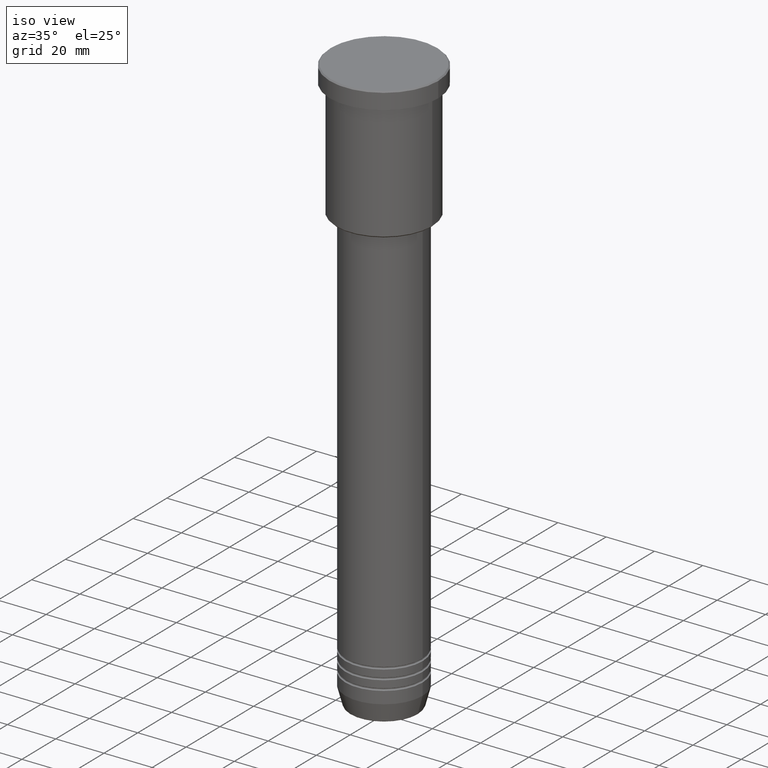
[diagram: clean part render]
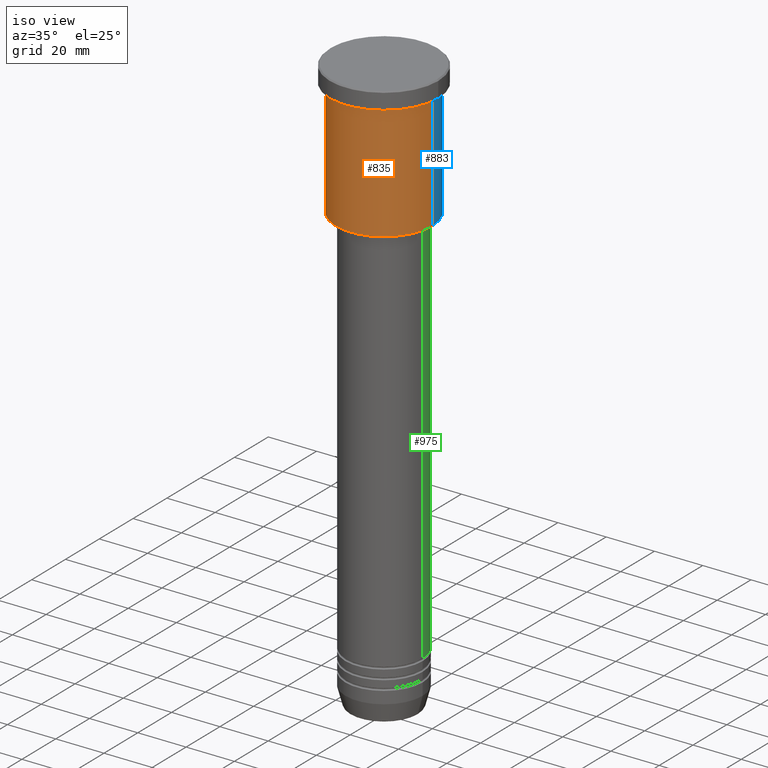
[diagram: same view with three faces highlighted in distinct colors, each labeled with its STEP entity id]
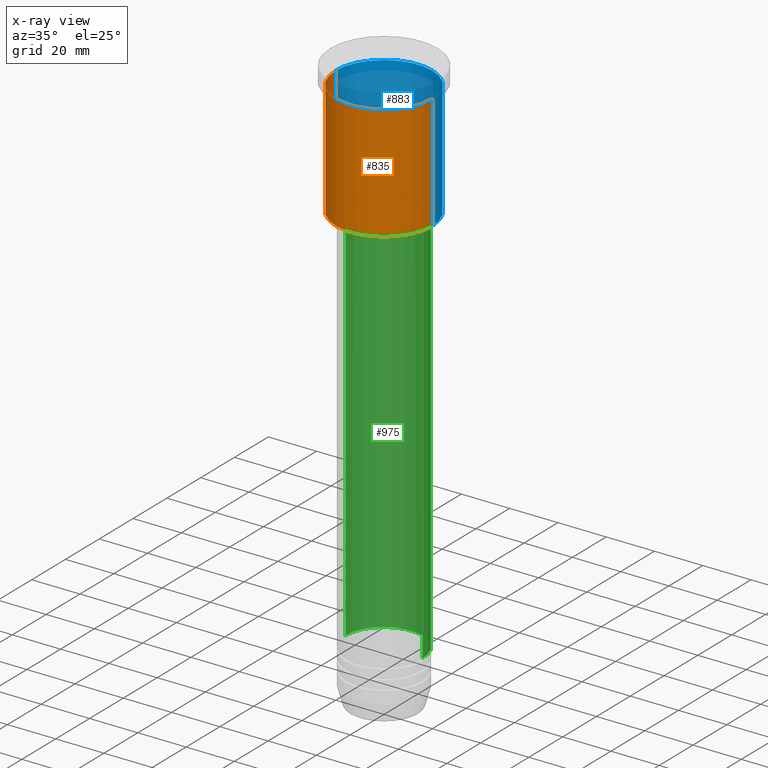
[diagram: x-ray of the same camera — body ghosted, the three highlighted faces saturated]
A machine part, iso view with three faces highlighted in distinct colors.
The next image is the same camera in x-ray (body ghosted, the three faces saturated) — at least one of them is partly hidden behind the body in this view.
Their STEP definitions:

[orange] entity #835 — the highlighted cylindrical surface (partial cylindrical patch) has radius 20 mm, axis along (-0, -0, 1).
#1 = CARTESIAN_POINT ( 'NONE',  ( 0.000000000000000000, 0.000000000000000000, -7.999999999999994671 ) ) ;
#76 = VECTOR ( 'NONE', #227, 1000.000000000000000 ) ;
#132 = DIRECTION ( 'NONE',  ( -1.000000000000000000, 0.000000000000000000, 0.000000000000000000 ) ) ;
#142 = CARTESIAN_POINT ( 'NONE',  ( -20.00000000000000000, 2.449293598294706513E-15, -7.999999999999994671 ) ) ;
#219 = ORIENTED_EDGE ( 'NONE', *, *, #287, .F. ) ;
#224 = EDGE_CURVE ( 'NONE', #571, #945, #1157, .T. ) ;
#227 = DIRECTION ( 'NONE',  ( -0.000000000000000000, -0.000000000000000000, 1.000000000000000000 ) ) ;
#287 = EDGE_CURVE ( 'NONE', #782, #945, #736, .T. ) ;
#292 = CARTESIAN_POINT ( 'NONE',  ( 20.00000000000000355, 0.000000000000000000, -55.50000000000000000 ) ) ;
#323 = CYLINDRICAL_SURFACE ( 'NONE', #566, 20.00000000000000355 ) ;
#335 = DIRECTION ( 'NONE',  ( 1.000000000000000000, 0.000000000000000000, 0.000000000000000000 ) ) ;
#430 = CIRCLE ( 'NONE', #523, 20.00000000000000355 ) ;
#439 = ORIENTED_EDGE ( 'NONE', *, *, #1092, .F. ) ;
#444 = CARTESIAN_POINT ( 'NONE',  ( 20.00000000000000000, 0.000000000000000000, -7.999999999999994671 ) ) ;
#449 = AXIS2_PLACEMENT_3D ( 'NONE', #1, #551, #335 ) ;
#452 = VERTEX_POINT ( 'NONE', #758 ) ;
#475 = VECTOR ( 'NONE', #1008, 1000.000000000000000 ) ;
#498 = CARTESIAN_POINT ( 'NONE',  ( 0.000000000000000000, 0.000000000000000000, 0.000000000000000000 ) ) ;
#523 = AXIS2_PLACEMENT_3D ( 'NONE', #943, #687, #132 ) ;
#551 = DIRECTION ( 'NONE',  ( -0.000000000000000000, -0.000000000000000000, 1.000000000000000000 ) ) ;
#566 = AXIS2_PLACEMENT_3D ( 'NONE', #498, #794, #1162 ) ;
#571 = VERTEX_POINT ( 'NONE', #292 ) ;
#677 = ORIENTED_EDGE ( 'NONE', *, *, #224, .T. ) ;
#687 = DIRECTION ( 'NONE',  ( -0.000000000000000000, -0.000000000000000000, 1.000000000000000000 ) ) ;
#736 = CIRCLE ( 'NONE', #449, 20.00000000000000000 ) ;
#738 = EDGE_CURVE ( 'NONE', #452, #571, #430, .T. ) ;
#750 = CARTESIAN_POINT ( 'NONE',  ( -20.00000000000000355, 2.449293598294706907E-15, 0.000000000000000000 ) ) ;
#758 = CARTESIAN_POINT ( 'NONE',  ( -20.00000000000000355, 2.449293598294706907E-15, -55.50000000000000000 ) ) ;
#760 = LINE ( 'NONE', #750, #475 ) ;
#782 = VERTEX_POINT ( 'NONE', #142 ) ;
#794 = DIRECTION ( 'NONE',  ( -0.000000000000000000, -0.000000000000000000, 1.000000000000000000 ) ) ;
#800 = ORIENTED_EDGE ( 'NONE', *, *, #738, .T. ) ;
#817 = EDGE_LOOP ( 'NONE', ( #439, #800, #677, #219 ) ) ;
#835 = ADVANCED_FACE ( 'NONE', ( #1153 ), #323, .T. ) ;
#943 = CARTESIAN_POINT ( 'NONE',  ( 0.000000000000000000, 0.000000000000000000, -55.50000000000000000 ) ) ;
#945 = VERTEX_POINT ( 'NONE', #444 ) ;
#1008 = DIRECTION ( 'NONE',  ( -0.000000000000000000, -0.000000000000000000, 1.000000000000000000 ) ) ;
#1092 = EDGE_CURVE ( 'NONE', #452, #782, #760, .T. ) ;
#1141 = CARTESIAN_POINT ( 'NONE',  ( 20.00000000000000355, 0.000000000000000000, 0.000000000000000000 ) ) ;
#1153 = FACE_OUTER_BOUND ( 'NONE', #817, .T. ) ;
#1157 = LINE ( 'NONE', #1141, #76 ) ;
#1162 = DIRECTION ( 'NONE',  ( 1.000000000000000000, 0.000000000000000000, 0.000000000000000000 ) ) ;

[blue] entity #883 — the highlighted cylindrical surface (partial cylindrical patch) has radius 20 mm, axis along (-0, -0, 1).
#60 = AXIS2_PLACEMENT_3D ( 'NONE', #1167, #942, #1108 ) ;
#76 = VECTOR ( 'NONE', #227, 1000.000000000000000 ) ;
#80 = EDGE_CURVE ( 'NONE', #945, #782, #579, .T. ) ;
#83 = CIRCLE ( 'NONE', #256, 20.00000000000000355 ) ;
#87 = ORIENTED_EDGE ( 'NONE', *, *, #224, .F. ) ;
#142 = CARTESIAN_POINT ( 'NONE',  ( -20.00000000000000000, 2.449293598294706513E-15, -7.999999999999994671 ) ) ;
#156 = ORIENTED_EDGE ( 'NONE', *, *, #1092, .T. ) ;
#224 = EDGE_CURVE ( 'NONE', #571, #945, #1157, .T. ) ;
#227 = DIRECTION ( 'NONE',  ( -0.000000000000000000, -0.000000000000000000, 1.000000000000000000 ) ) ;
#256 = AXIS2_PLACEMENT_3D ( 'NONE', #1100, #275, #670 ) ;
#275 = DIRECTION ( 'NONE',  ( -0.000000000000000000, -0.000000000000000000, 1.000000000000000000 ) ) ;
#292 = CARTESIAN_POINT ( 'NONE',  ( 20.00000000000000355, 0.000000000000000000, -55.50000000000000000 ) ) ;
#360 = DIRECTION ( 'NONE',  ( 1.000000000000000000, 0.000000000000000000, 0.000000000000000000 ) ) ;
#403 = ORIENTED_EDGE ( 'NONE', *, *, #1116, .T. ) ;
#435 = FACE_OUTER_BOUND ( 'NONE', #985, .T. ) ;
#444 = CARTESIAN_POINT ( 'NONE',  ( 20.00000000000000000, 0.000000000000000000, -7.999999999999994671 ) ) ;
#452 = VERTEX_POINT ( 'NONE', #758 ) ;
#475 = VECTOR ( 'NONE', #1008, 1000.000000000000000 ) ;
#571 = VERTEX_POINT ( 'NONE', #292 ) ;
#579 = CIRCLE ( 'NONE', #60, 20.00000000000000000 ) ;
#670 = DIRECTION ( 'NONE',  ( -1.000000000000000000, 0.000000000000000000, 0.000000000000000000 ) ) ;
#707 = DIRECTION ( 'NONE',  ( -0.000000000000000000, -0.000000000000000000, 1.000000000000000000 ) ) ;
#709 = ORIENTED_EDGE ( 'NONE', *, *, #80, .F. ) ;
#750 = CARTESIAN_POINT ( 'NONE',  ( -20.00000000000000355, 2.449293598294706907E-15, 0.000000000000000000 ) ) ;
#758 = CARTESIAN_POINT ( 'NONE',  ( -20.00000000000000355, 2.449293598294706907E-15, -55.50000000000000000 ) ) ;
#760 = LINE ( 'NONE', #750, #475 ) ;
#782 = VERTEX_POINT ( 'NONE', #142 ) ;
#883 = ADVANCED_FACE ( 'NONE', ( #435 ), #905, .T. ) ;
#894 = CARTESIAN_POINT ( 'NONE',  ( 0.000000000000000000, 0.000000000000000000, 0.000000000000000000 ) ) ;
#905 = CYLINDRICAL_SURFACE ( 'NONE', #1137, 20.00000000000000355 ) ;
#942 = DIRECTION ( 'NONE',  ( -0.000000000000000000, -0.000000000000000000, 1.000000000000000000 ) ) ;
#945 = VERTEX_POINT ( 'NONE', #444 ) ;
#985 = EDGE_LOOP ( 'NONE', ( #403, #156, #709, #87 ) ) ;
#1008 = DIRECTION ( 'NONE',  ( -0.000000000000000000, -0.000000000000000000, 1.000000000000000000 ) ) ;
#1092 = EDGE_CURVE ( 'NONE', #452, #782, #760, .T. ) ;
#1100 = CARTESIAN_POINT ( 'NONE',  ( 0.000000000000000000, 0.000000000000000000, -55.50000000000000000 ) ) ;
#1108 = DIRECTION ( 'NONE',  ( 1.000000000000000000, 0.000000000000000000, 0.000000000000000000 ) ) ;
#1116 = EDGE_CURVE ( 'NONE', #571, #452, #83, .T. ) ;
#1137 = AXIS2_PLACEMENT_3D ( 'NONE', #894, #707, #360 ) ;
#1141 = CARTESIAN_POINT ( 'NONE',  ( 20.00000000000000355, 0.000000000000000000, 0.000000000000000000 ) ) ;
#1157 = LINE ( 'NONE', #1141, #76 ) ;
#1167 = CARTESIAN_POINT ( 'NONE',  ( 0.000000000000000000, 0.000000000000000000, -7.999999999999994671 ) ) ;

[green] entity #975 — the highlighted cylindrical surface (partial cylindrical patch) has radius 16 mm, axis along (-0, -0, 1).
#16 = EDGE_CURVE ( 'NONE', #896, #928, #500, .T. ) ;
#63 = CYLINDRICAL_SURFACE ( 'NONE', #65, 16.00000000000000000 ) ;
#65 = AXIS2_PLACEMENT_3D ( 'NONE', #799, #434, #970 ) ;
#128 = CARTESIAN_POINT ( 'NONE',  ( 0.000000000000000000, 0.000000000000000000, -218.5000000000000000 ) ) ;
#163 = DIRECTION ( 'NONE',  ( -0.000000000000000000, -0.000000000000000000, 1.000000000000000000 ) ) ;
#236 = CIRCLE ( 'NONE', #1013, 16.00000000000000000 ) ;
#251 = VERTEX_POINT ( 'NONE', #320 ) ;
#262 = EDGE_CURVE ( 'NONE', #251, #748, #977, .T. ) ;
#296 = DIRECTION ( 'NONE',  ( -0.000000000000000000, -0.000000000000000000, 1.000000000000000000 ) ) ;
#306 = ORIENTED_EDGE ( 'NONE', *, *, #262, .F. ) ;
#315 = CARTESIAN_POINT ( 'NONE',  ( -16.00000000000000000, 1.959434878635765131E-15, 0.000000000000000000 ) ) ;
#320 = CARTESIAN_POINT ( 'NONE',  ( 16.00000000000000000, 0.000000000000000000, -218.5000000000000000 ) ) ;
#343 = DIRECTION ( 'NONE',  ( -0.000000000000000000, -0.000000000000000000, 1.000000000000000000 ) ) ;
#358 = DIRECTION ( 'NONE',  ( 1.000000000000000000, 0.000000000000000000, 0.000000000000000000 ) ) ;
#434 = DIRECTION ( 'NONE',  ( -0.000000000000000000, -0.000000000000000000, 1.000000000000000000 ) ) ;
#441 = CARTESIAN_POINT ( 'NONE',  ( 16.00000000000000000, 0.000000000000000000, 0.000000000000000000 ) ) ;
#495 = EDGE_CURVE ( 'NONE', #748, #928, #759, .T. ) ;
#500 = LINE ( 'NONE', #315, #602 ) ;
#514 = EDGE_LOOP ( 'NONE', ( #685, #872, #965, #306 ) ) ;
#601 = DIRECTION ( 'NONE',  ( -0.000000000000000000, -0.000000000000000000, 1.000000000000000000 ) ) ;
#602 = VECTOR ( 'NONE', #296, 1000.000000000000000 ) ;
#680 = AXIS2_PLACEMENT_3D ( 'NONE', #1106, #163, #358 ) ;
#681 = CARTESIAN_POINT ( 'NONE',  ( 16.00000000000000000, 0.000000000000000000, -57.00000000000002842 ) ) ;
#685 = ORIENTED_EDGE ( 'NONE', *, *, #752, .T. ) ;
#726 = CARTESIAN_POINT ( 'NONE',  ( -16.00000000000000000, 1.959434878635765131E-15, -57.00000000000002842 ) ) ;
#748 = VERTEX_POINT ( 'NONE', #681 ) ;
#752 = EDGE_CURVE ( 'NONE', #251, #896, #236, .T. ) ;
#759 = CIRCLE ( 'NONE', #680, 16.00000000000000000 ) ;
#799 = CARTESIAN_POINT ( 'NONE',  ( 0.000000000000000000, 0.000000000000000000, 0.000000000000000000 ) ) ;
#872 = ORIENTED_EDGE ( 'NONE', *, *, #16, .T. ) ;
#873 = DIRECTION ( 'NONE',  ( 1.000000000000000000, 0.000000000000000000, 0.000000000000000000 ) ) ;
#896 = VERTEX_POINT ( 'NONE', #1082 ) ;
#928 = VERTEX_POINT ( 'NONE', #726 ) ;
#935 = VECTOR ( 'NONE', #343, 1000.000000000000000 ) ;
#965 = ORIENTED_EDGE ( 'NONE', *, *, #495, .F. ) ;
#966 = FACE_OUTER_BOUND ( 'NONE', #514, .T. ) ;
#970 = DIRECTION ( 'NONE',  ( 1.000000000000000000, 0.000000000000000000, 0.000000000000000000 ) ) ;
#975 = ADVANCED_FACE ( 'NONE', ( #966 ), #63, .T. ) ;
#977 = LINE ( 'NONE', #441, #935 ) ;
#1013 = AXIS2_PLACEMENT_3D ( 'NONE', #128, #601, #873 ) ;
#1082 = CARTESIAN_POINT ( 'NONE',  ( -16.00000000000000000, 1.959434878635765131E-15, -218.5000000000000000 ) ) ;
#1106 = CARTESIAN_POINT ( 'NONE',  ( 0.000000000000000000, 0.000000000000000000, -57.00000000000002842 ) ) ;